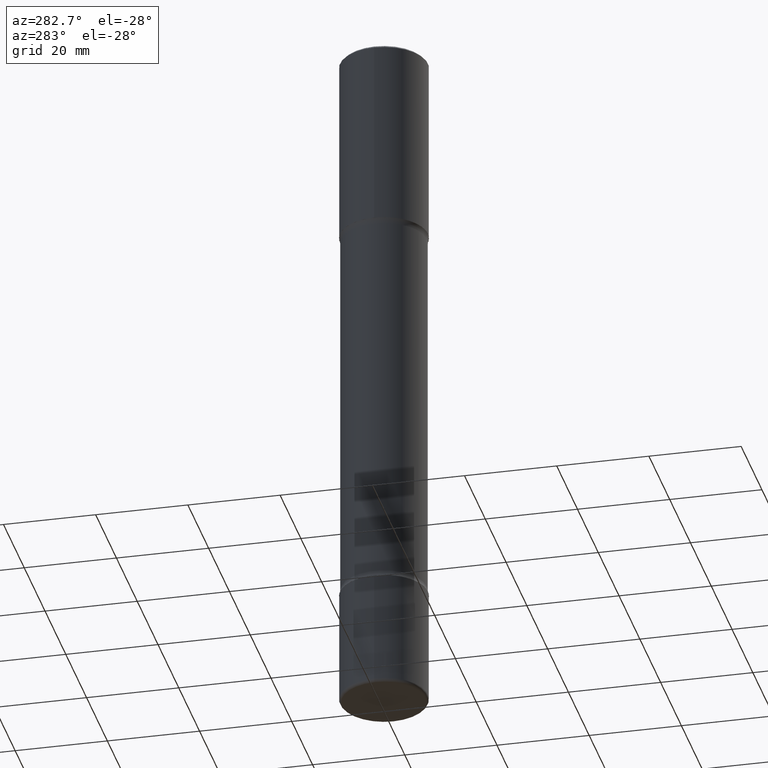
[diagram: clean part render]
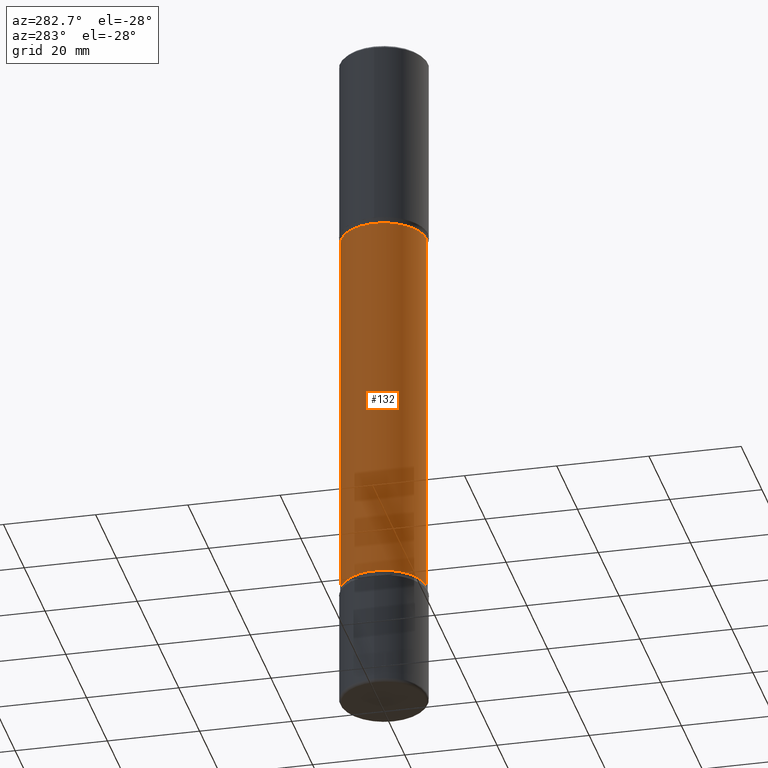
[diagram: same view with one face highlighted and labeled with its STEP entity id]
A machine part, auxiliary view. The second image highlights one B-rep face of the part: STEP entity #132.
In plain terms, the highlighted cylindrical surface (partial cylindrical patch) has radius 9.271 mm, axis along (0, -0, -1).
Its self-contained STEP definition (entity closure, byte-faithful):
#2 = EDGE_CURVE ( 'NONE', #208, #10, #236, .T. ) ;
#10 = VERTEX_POINT ( 'NONE', #395 ) ;
#19 = ORIENTED_EDGE ( 'NONE', *, *, #460, .T. ) ;
#33 = CIRCLE ( 'NONE', #344, 0.3650000000000004907 ) ;
#44 = DIRECTION ( 'NONE',  ( 6.982962677686265922E-15, 1.000000000000000000, -2.993806020453985462E-15 ) ) ;
#53 = CYLINDRICAL_SURFACE ( 'NONE', #521, 0.3650000000000002132 ) ;
#68 = CIRCLE ( 'NONE', #410, 0.3649999999999999356 ) ;
#114 = DIRECTION ( 'NONE',  ( 6.982962677686265922E-15, 1.000000000000000000, -2.993806020453987435E-15 ) ) ;
#132 = ADVANCED_FACE ( 'NONE', ( #266 ), #53, .T. ) ;
#137 = EDGE_CURVE ( 'NONE', #10, #446, #68, .T. ) ;
#147 = EDGE_CURVE ( 'NONE', #208, #206, #33, .T. ) ;
#165 = ORIENTED_EDGE ( 'NONE', *, *, #147, .T. ) ;
#173 = VECTOR ( 'NONE', #559, 39.37007874015748143 ) ;
#196 = ORIENTED_EDGE ( 'NONE', *, *, #2, .F. ) ;
#206 = VERTEX_POINT ( 'NONE', #546 ) ;
#208 = VERTEX_POINT ( 'NONE', #241 ) ;
#224 = CARTESIAN_POINT ( 'NONE',  ( 1.209819553019351831E-28, -1.729974300696207142E-14, -4.951010205144336318 ) ) ;
#236 = LINE ( 'NONE', #397, #375 ) ;
#241 = CARTESIAN_POINT ( 'NONE',  ( -2.538384259175437285E-15, -0.3650000000000072631, -1.673989794855663460 ) ) ;
#264 = CARTESIAN_POINT ( 'NONE',  ( 1.486357676291951651E-28, -2.067570323369244855E-14, -6.000000000000000888 ) ) ;
#266 = FACE_OUTER_BOUND ( 'NONE', #426, .T. ) ;
#281 = DIRECTION ( 'NONE',  ( 2.636232731993832963E-29, -3.218296539476719458E-15, -1.000000000000000000 ) ) ;
#287 = CARTESIAN_POINT ( 'NONE',  ( 3.459207061178662599E-29, -6.753319560735459691E-15, -1.673989794855664570 ) ) ;
#289 = ORIENTED_EDGE ( 'NONE', *, *, #137, .F. ) ;
#344 = AXIS2_PLACEMENT_3D ( 'NONE', #287, #498, #547 ) ;
#346 = LINE ( 'NONE', #385, #173 ) ;
#375 = VECTOR ( 'NONE', #490, 39.37007874015748143 ) ;
#381 = CARTESIAN_POINT ( 'NONE',  ( 2.548781377355607414E-15, 0.3649999999999826716, -4.951010205144337206 ) ) ;
#385 = CARTESIAN_POINT ( 'NONE',  ( 2.548781377355636996E-15, 0.3649999999999795075, -6.000000000000001776 ) ) ;
#395 = CARTESIAN_POINT ( 'NONE',  ( -2.538384259175344988E-15, -0.3650000000000171996, -4.951010205144335430 ) ) ;
#397 = CARTESIAN_POINT ( 'NONE',  ( -2.504081769186461882E-15, -0.3650000000000209188, -5.999999999999999112 ) ) ;
#410 = AXIS2_PLACEMENT_3D ( 'NONE', #224, #281, #114 ) ;
#426 = EDGE_LOOP ( 'NONE', ( #196, #165, #19, #289 ) ) ;
#433 = DIRECTION ( 'NONE',  ( 2.636232731993832963E-29, -3.218296539476719458E-15, -1.000000000000000000 ) ) ;
#446 = VERTEX_POINT ( 'NONE', #381 ) ;
#460 = EDGE_CURVE ( 'NONE', #206, #446, #346, .T. ) ;
#490 = DIRECTION ( 'NONE',  ( 2.636232731993832963E-29, -3.218296539476719458E-15, -1.000000000000000000 ) ) ;
#498 = DIRECTION ( 'NONE',  ( 2.636232731993832963E-29, -3.218296539476719458E-15, -1.000000000000000000 ) ) ;
#521 = AXIS2_PLACEMENT_3D ( 'NONE', #264, #433, #44 ) ;
#546 = CARTESIAN_POINT ( 'NONE',  ( 2.548781377355524978E-15, 0.3649999999999937184, -1.673989794855665680 ) ) ;
#547 = DIRECTION ( 'NONE',  ( 6.982962677686266711E-15, 1.000000000000000000, -2.993806020453983096E-15 ) ) ;
#559 = DIRECTION ( 'NONE',  ( 2.636232731993832963E-29, -3.218296539476719458E-15, -1.000000000000000000 ) ) ;